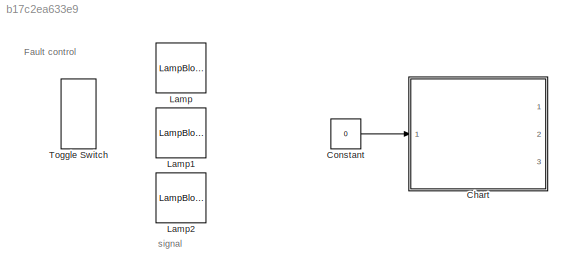
MODEL slx_b17c2ea633e9
KIND model
CONFIG AbsTol = auto
CONFIG EnableMultiTasking = off
CONFIG FixedStep = auto
CONFIG MaxStep = auto
CONFIG MinStep = auto
CONFIG RelTol = 1e-3
CONFIG SampleTimeConstraint = Unconstrained
CONFIG Solver = VariableStepAuto
CONFIG SolverName = VariableStepAuto
CONFIG StartTime = 0.0
CONFIG StopTime = inf
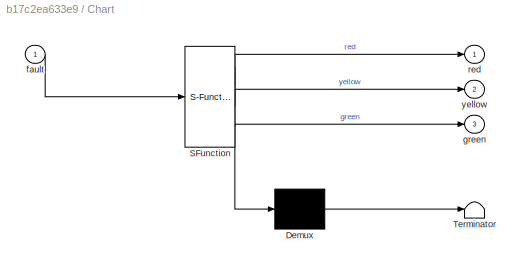
BLOCK [SubSystem] Chart
  ErrorFcn = Stateflow.Translate.translate
  PermitHierarchicalResolution = ExplicitOnly
  Ports = [1, 3]
  SFBlockType = Chart
  TreatAsAtomicUnit = on
BLOCK [Demux] Chart/ Demux 
  Outputs = 1
  Ports = [1, 1]
BLOCK [S-Function] Chart/ SFunction 
  EnableBusSupport = on
  FunctionName = sf_sfun
  PortCounts = [1 4]
  Ports = [1, 4]
  SFcnIsStateOwnerBlock = off
  SFunctionDeploymentMode = off
  Tag = Stateflow S-Function 3
BLOCK [Terminator] Chart/ Terminator 
BLOCK [Inport] Chart/fault
BLOCK [Outport] Chart/green
  Port = 3
BLOCK [Outport] Chart/red
BLOCK [Outport] Chart/yellow
  Port = 2
BLOCK [Constant] Constant
  Value = 0
BLOCK [LampBlock] Lamp
  LabelPosition = Hide
BLOCK [LampBlock] Lamp1
  LabelPosition = Hide
BLOCK [LampBlock] Lamp2
  LabelPosition = Hide
BLOCK [ToggleSwitchBlock] Toggle Switch
  LabelPosition = Hide
ANNOTATION (root): Fault control
ANNOTATION (root): signal
LINE Constant:1 -> Chart:1
CHART Chart states=7 transitions=10
  STATE_LABEL 'NormalMode'
  STATE_LABEL 'Stop\nentry:\nred=1;\nyellow=0;\ngreen=0;'
  STATE_LABEL 'PrepareToStop\nentry:\nred=0;\nyellow=1;\ngreen=0;'
  STATE_LABEL 'Go\nentry:\nred=0;\nyellow=0;\ngreen=1;'
  STATE_LABEL 'after(3,sec)'
  STATE_LABEL 'after(4,sec)'
  STATE_LABEL 'after(10,sec)'
  STATE_LABEL 'Stop\nentry:\nred=1;\nyellow=0;\ngreen=0;'
  STATE_LABEL 'PrepareToStop\nentry:\nred=0;\nyellow=1;\ngreen=0;'
  STATE_LABEL 'Go\nentry:\nred=0;\nyellow=0;\ngreen=1;'
  STATE_LABEL 'FaultMode\nentry:\nyellow=0;\ngreen=0;'
  STATE_LABEL 'BlinkOff\nentry:\nred=0;\n'
  STATE_LABEL 'BlinkOn\nentry:\nred=1;'
  STATE_LABEL 'after(2,sec)'
  STATE_LABEL 'after(2,sec)'
  STATE_LABEL 'BlinkOff\nentry:\nred=0;\n'
  STATE_LABEL 'BlinkOn\nentry:\nred=1;'
